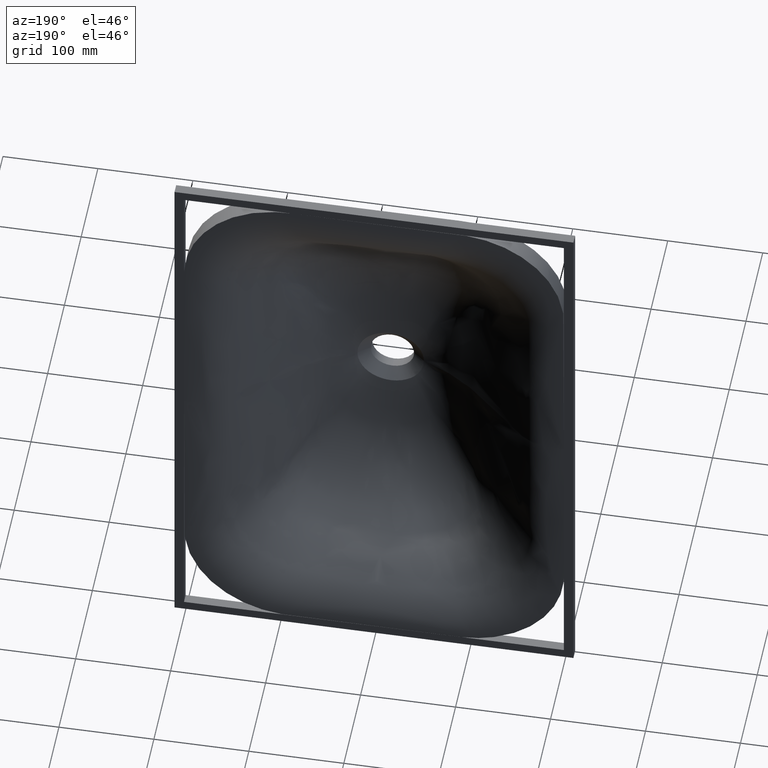
[diagram: clean part render]
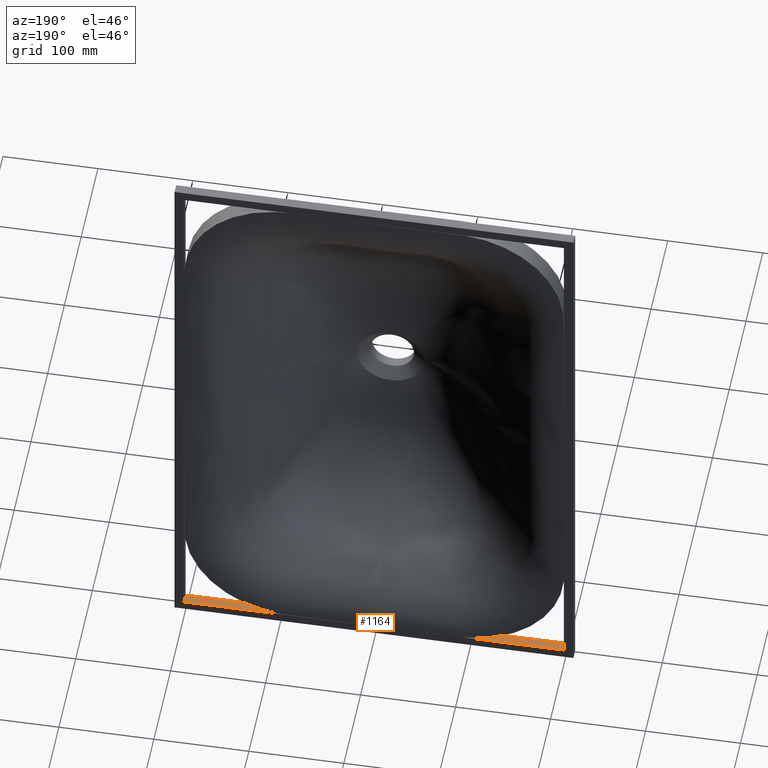
[diagram: same view with one face highlighted and labeled with its STEP entity id]
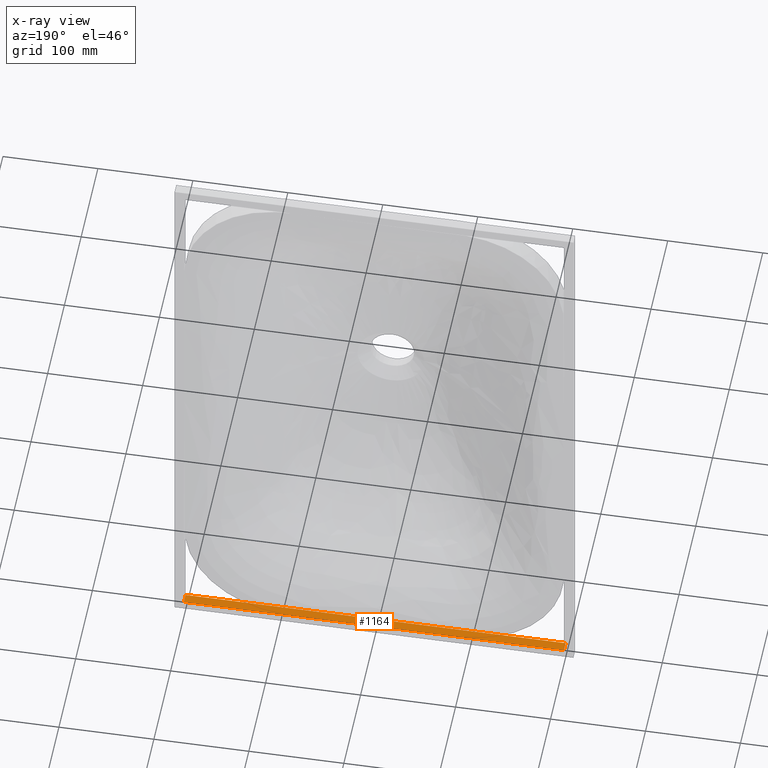
[diagram: x-ray of the same camera — body ghosted, the highlighted face saturated]
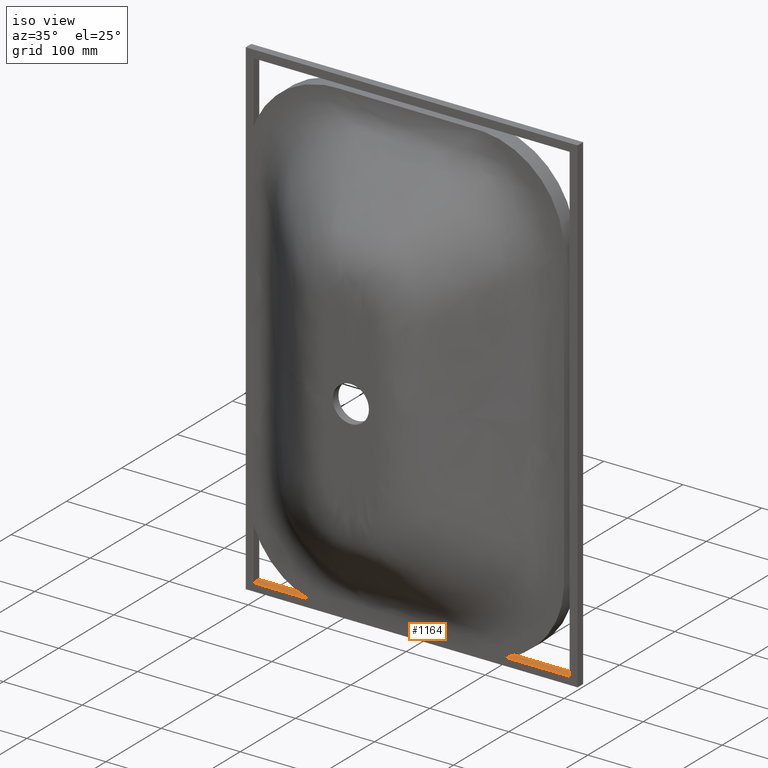
[diagram: same view with one face highlighted and labeled with its STEP entity id]
A machine part, auxiliary view. The second image highlights one B-rep face of the part: STEP entity #1164.
The next image is the same camera in x-ray: the body ghosted, the highlighted face saturated — about 0% of this face is hidden behind the body in this view.
A second angle (iso view) of the same face is appended — the face is thin or edge-on in the first view.
In plain terms, the highlighted planar face has unit normal (0, 0, -1).
Its self-contained STEP definition (entity closure, byte-faithful):
#385 = CARTESIAN_POINT ( 'NONE',  ( 199.9999999999999700, 110.0000000000000000, -300.0000000000000000 ) ) ;
#1016 = EDGE_CURVE ( 'NONE', #6903, #7414, #8671, .T. ) ;
#1164 = ADVANCED_FACE ( 'NONE', ( #6718 ), #4138, .F. ) ;
#2223 = EDGE_CURVE ( 'NONE', #6158, #7414, #9258, .T. ) ;
#2846 = CARTESIAN_POINT ( 'NONE',  ( 199.9999999999999700, 120.0000000000000000, -300.0000000000000000 ) ) ;
#3335 = EDGE_LOOP ( 'NONE', ( #8175, #11501, #9550, #13360 ) ) ;
#3621 = CARTESIAN_POINT ( 'NONE',  ( -199.9999999999999700, 110.0000000000000000, -300.0000000000000000 ) ) ;
#3733 = VECTOR ( 'NONE', #8398, 1000.000000000000000 ) ;
#4138 = PLANE ( 'NONE',  #6655 ) ;
#4239 = LINE ( 'NONE', #12810, #8539 ) ;
#4561 = LINE ( 'NONE', #8418, #3733 ) ;
#5188 = EDGE_CURVE ( 'NONE', #7640, #6158, #4239, .T. ) ;
#5269 = VECTOR ( 'NONE', #11004, 1000.000000000000000 ) ;
#6158 = VERTEX_POINT ( 'NONE', #9670 ) ;
#6381 = VECTOR ( 'NONE', #7417, 1000.000000000000000 ) ;
#6655 = AXIS2_PLACEMENT_3D ( 'NONE', #385, #8167, #8274 ) ;
#6718 = FACE_OUTER_BOUND ( 'NONE', #3335, .T. ) ;
#6903 = VERTEX_POINT ( 'NONE', #2846 ) ;
#7414 = VERTEX_POINT ( 'NONE', #8464 ) ;
#7417 = DIRECTION ( 'NONE',  ( 0.0000000000000000000, 1.000000000000000000, 0.0000000000000000000 ) ) ;
#7640 = VERTEX_POINT ( 'NONE', #11227 ) ;
#8167 = DIRECTION ( 'NONE',  ( 0.0000000000000000000, 0.0000000000000000000, -1.000000000000000000 ) ) ;
#8175 = ORIENTED_EDGE ( 'NONE', *, *, #1016, .T. ) ;
#8274 = DIRECTION ( 'NONE',  ( -1.000000000000000000, 0.0000000000000000000, -0.0000000000000000000 ) ) ;
#8398 = DIRECTION ( 'NONE',  ( 0.0000000000000000000, 1.000000000000000000, 0.0000000000000000000 ) ) ;
#8418 = CARTESIAN_POINT ( 'NONE',  ( 199.9999999999999700, 110.0000000000000000, -300.0000000000000000 ) ) ;
#8464 = CARTESIAN_POINT ( 'NONE',  ( -199.9999999999999700, 120.0000000000000000, -300.0000000000000000 ) ) ;
#8504 = DIRECTION ( 'NONE',  ( -1.000000000000000000, 0.0000000000000000000, 0.0000000000000000000 ) ) ;
#8539 = VECTOR ( 'NONE', #8504, 1000.000000000000000 ) ;
#8671 = LINE ( 'NONE', #8949, #5269 ) ;
#8949 = CARTESIAN_POINT ( 'NONE',  ( 199.9999999999999700, 120.0000000000000000, -300.0000000000000000 ) ) ;
#9258 = LINE ( 'NONE', #3621, #6381 ) ;
#9550 = ORIENTED_EDGE ( 'NONE', *, *, #5188, .F. ) ;
#9670 = CARTESIAN_POINT ( 'NONE',  ( -199.9999999999999700, 110.0000000000000000, -300.0000000000000000 ) ) ;
#11004 = DIRECTION ( 'NONE',  ( -1.000000000000000000, 0.0000000000000000000, 0.0000000000000000000 ) ) ;
#11227 = CARTESIAN_POINT ( 'NONE',  ( 199.9999999999999700, 110.0000000000000000, -300.0000000000000000 ) ) ;
#11501 = ORIENTED_EDGE ( 'NONE', *, *, #2223, .F. ) ;
#12628 = EDGE_CURVE ( 'NONE', #7640, #6903, #4561, .T. ) ;
#12810 = CARTESIAN_POINT ( 'NONE',  ( 199.9999999999999700, 110.0000000000000000, -300.0000000000000000 ) ) ;
#13360 = ORIENTED_EDGE ( 'NONE', *, *, #12628, .T. ) ;